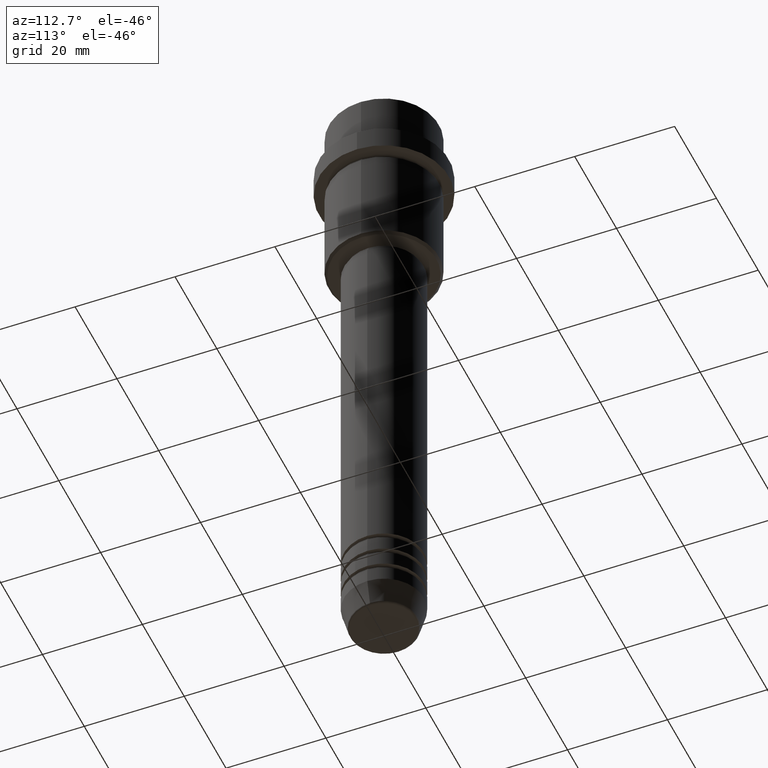
[diagram: clean part render]
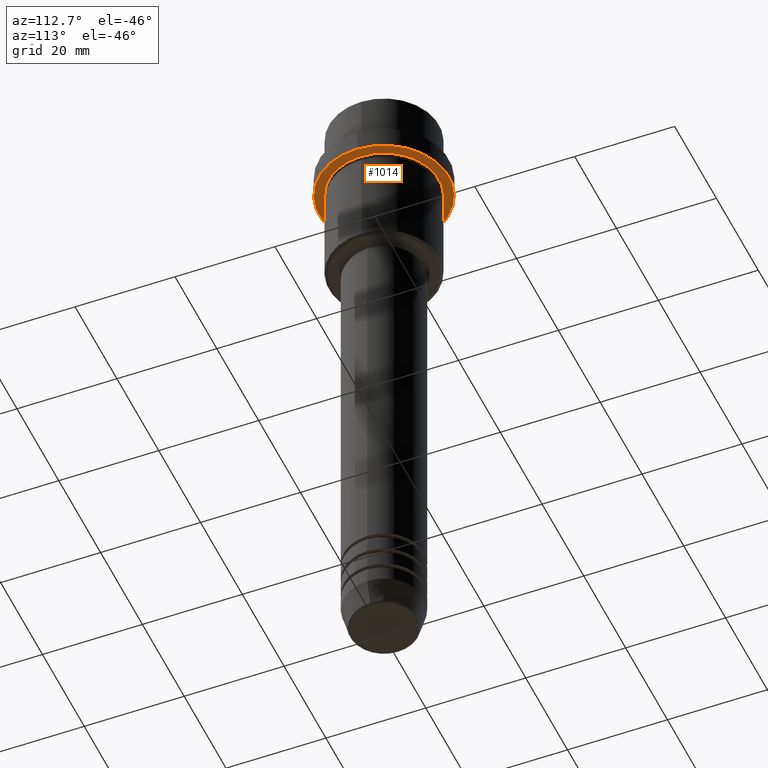
[diagram: same view with one face highlighted and labeled with its STEP entity id]
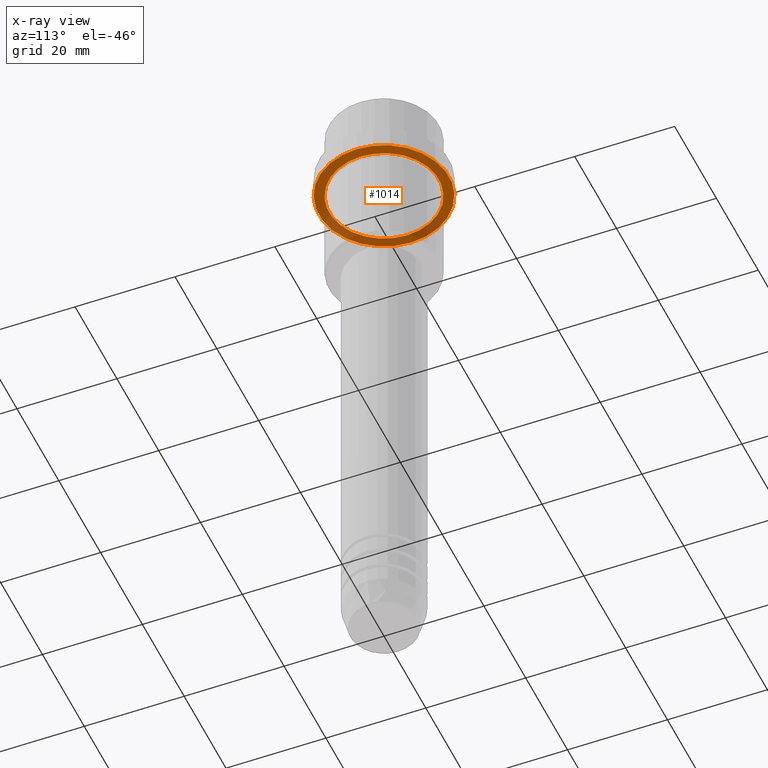
[diagram: x-ray of the same camera — body ghosted, the highlighted face saturated]
A machine part, auxiliary view. The second image highlights one B-rep face of the part: STEP entity #1014.
The next image is the same camera in x-ray: the body ghosted, the highlighted face saturated — about 34% of this face is hidden behind the body in this view.
In plain terms, the highlighted planar face has unit normal (0, 0, -1).
Its self-contained STEP definition (entity closure, byte-faithful):
#123 = PLANE ( 'NONE',  #155 ) ;
#155 = AXIS2_PLACEMENT_3D ( 'NONE', #808, #1332, #556 ) ;
#164 = CIRCLE ( 'NONE', #360, 13.00000000000000000 ) ;
#180 = ORIENTED_EDGE ( 'NONE', *, *, #580, .F. ) ;
#231 = DIRECTION ( 'NONE',  ( -0.000000000000000000, -0.000000000000000000, 1.000000000000000000 ) ) ;
#233 = EDGE_CURVE ( 'NONE', #1009, #789, #973, .T. ) ;
#238 = CARTESIAN_POINT ( 'NONE',  ( 0.000000000000000000, 0.000000000000000000, -15.00000000000000178 ) ) ;
#288 = CIRCLE ( 'NONE', #1375, 13.00000000000000000 ) ;
#360 = AXIS2_PLACEMENT_3D ( 'NONE', #792, #1226, #1213 ) ;
#372 = DIRECTION ( 'NONE',  ( 1.000000000000000000, 0.000000000000000000, 0.000000000000000000 ) ) ;
#405 = VERTEX_POINT ( 'NONE', #963 ) ;
#496 = EDGE_CURVE ( 'NONE', #789, #1009, #928, .T. ) ;
#516 = ORIENTED_EDGE ( 'NONE', *, *, #1040, .F. ) ;
#556 = DIRECTION ( 'NONE',  ( -1.000000000000000000, 0.000000000000000000, -0.000000000000000000 ) ) ;
#560 = VERTEX_POINT ( 'NONE', #1320 ) ;
#579 = AXIS2_PLACEMENT_3D ( 'NONE', #809, #1238, #692 ) ;
#580 = EDGE_CURVE ( 'NONE', #405, #560, #164, .T. ) ;
#602 = DIRECTION ( 'NONE',  ( -0.000000000000000000, -0.000000000000000000, 1.000000000000000000 ) ) ;
#692 = DIRECTION ( 'NONE',  ( -1.000000000000000000, 0.000000000000000000, 0.000000000000000000 ) ) ;
#699 = CARTESIAN_POINT ( 'NONE',  ( 0.000000000000000000, 0.000000000000000000, -15.00000000000000355 ) ) ;
#789 = VERTEX_POINT ( 'NONE', #1147 ) ;
#792 = CARTESIAN_POINT ( 'NONE',  ( 0.000000000000000000, 0.000000000000000000, -15.00000000000000178 ) ) ;
#808 = CARTESIAN_POINT ( 'NONE',  ( 0.000000000000000000, 13.00000000000000000, -15.00000000000000355 ) ) ;
#809 = CARTESIAN_POINT ( 'NONE',  ( 0.000000000000000000, 0.000000000000000000, -15.00000000000000355 ) ) ;
#831 = DIRECTION ( 'NONE',  ( -1.000000000000000000, 0.000000000000000000, 0.000000000000000000 ) ) ;
#928 = CIRCLE ( 'NONE', #1335, 10.99999999999996625 ) ;
#963 = CARTESIAN_POINT ( 'NONE',  ( 13.00000000000000000, 0.000000000000000000, -15.00000000000000178 ) ) ;
#973 = CIRCLE ( 'NONE', #579, 10.99999999999996625 ) ;
#1007 = FACE_OUTER_BOUND ( 'NONE', #1168, .T. ) ;
#1009 = VERTEX_POINT ( 'NONE', #1127 ) ;
#1014 = ADVANCED_FACE ( 'NONE', ( #1120, #1007 ), #123, .T. ) ;
#1040 = EDGE_CURVE ( 'NONE', #560, #405, #288, .T. ) ;
#1120 = FACE_BOUND ( 'NONE', #1267, .T. ) ;
#1127 = CARTESIAN_POINT ( 'NONE',  ( 10.99999999999996625, 1.347111479062084460E-15, -15.00000000000000355 ) ) ;
#1147 = CARTESIAN_POINT ( 'NONE',  ( -10.99999999999996625, 0.000000000000000000, -15.00000000000000355 ) ) ;
#1168 = EDGE_LOOP ( 'NONE', ( #180, #516 ) ) ;
#1213 = DIRECTION ( 'NONE',  ( 1.000000000000000000, 0.000000000000000000, 0.000000000000000000 ) ) ;
#1226 = DIRECTION ( 'NONE',  ( -0.000000000000000000, -0.000000000000000000, 1.000000000000000000 ) ) ;
#1238 = DIRECTION ( 'NONE',  ( -0.000000000000000000, -0.000000000000000000, 1.000000000000000000 ) ) ;
#1267 = EDGE_LOOP ( 'NONE', ( #1327, #1328 ) ) ;
#1320 = CARTESIAN_POINT ( 'NONE',  ( -13.00000000000000000, 1.592040838891559095E-15, -15.00000000000000178 ) ) ;
#1327 = ORIENTED_EDGE ( 'NONE', *, *, #496, .T. ) ;
#1328 = ORIENTED_EDGE ( 'NONE', *, *, #233, .T. ) ;
#1332 = DIRECTION ( 'NONE',  ( 0.000000000000000000, 0.000000000000000000, -1.000000000000000000 ) ) ;
#1335 = AXIS2_PLACEMENT_3D ( 'NONE', #699, #602, #831 ) ;
#1375 = AXIS2_PLACEMENT_3D ( 'NONE', #238, #231, #372 ) ;